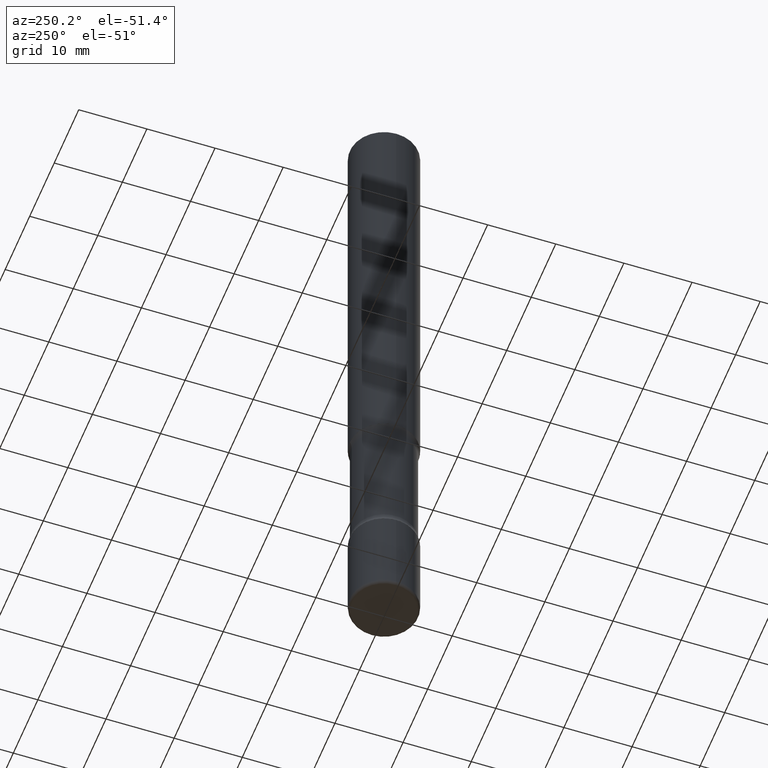
[diagram: clean part render]
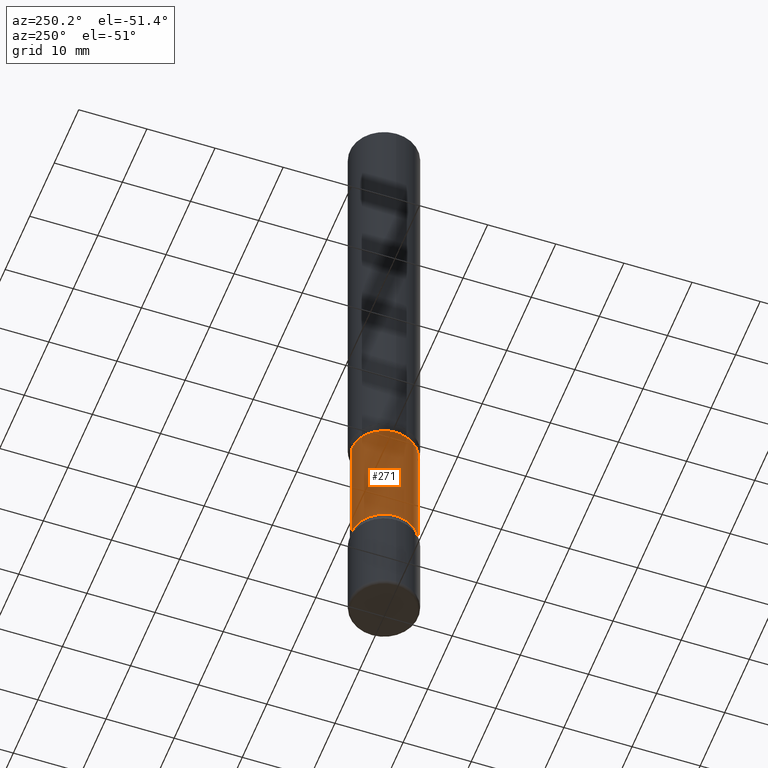
[diagram: same view with one face highlighted and labeled with its STEP entity id]
A machine part, auxiliary view. The second image highlights one B-rep face of the part: STEP entity #271.
In plain terms, the highlighted cylindrical surface (edge-blend (fillet) strip) has radius 4.7409 mm, axis along (0, -0, -1).
Its self-contained STEP definition (entity closure, byte-faithful):
#23 = VECTOR ( 'NONE', #281, 39.37007874015748143 ) ;
#24 = VERTEX_POINT ( 'NONE', #256 ) ;
#26 = FACE_OUTER_BOUND ( 'NONE', #367, .T. ) ;
#32 = EDGE_CURVE ( 'NONE', #24, #126, #135, .T. ) ;
#39 = DIRECTION ( 'NONE',  ( 2.591588243807108620E-29, -3.282229987566573640E-15, -1.000000000000000000 ) ) ;
#65 = VERTEX_POINT ( 'NONE', #94 ) ;
#68 = DIRECTION ( 'NONE',  ( 2.591588243807108620E-29, -3.282229987566573640E-15, -1.000000000000000000 ) ) ;
#94 = CARTESIAN_POINT ( 'NONE',  ( 1.303369983790204808E-15, 0.1866499999999908233, -2.608456647682592777 ) ) ;
#95 = VECTOR ( 'NONE', #453, 39.37007874015748143 ) ;
#102 = EDGE_CURVE ( 'NONE', #65, #120, #393, .T. ) ;
#106 = ORIENTED_EDGE ( 'NONE', *, *, #317, .F. ) ;
#113 = DIRECTION ( 'NONE',  ( 6.982962677686266711E-15, 1.000000000000000000, -2.927241354046893093E-15 ) ) ;
#117 = DIRECTION ( 'NONE',  ( 6.982962677686266711E-15, 1.000000000000000000, -2.927241354046892699E-15 ) ) ;
#120 = VERTEX_POINT ( 'NONE', #348 ) ;
#126 = VERTEX_POINT ( 'NONE', #358 ) ;
#128 = CYLINDRICAL_SURFACE ( 'NONE', #255, 0.1866500000000000381 ) ;
#135 = LINE ( 'NONE', #424, #95 ) ;
#151 = ORIENTED_EDGE ( 'NONE', *, *, #102, .T. ) ;
#203 = CARTESIAN_POINT ( 'NONE',  ( 9.708351723968114409E-29, -1.363062268620181866E-14, -3.937000000000000277 ) ) ;
#206 = ORIENTED_EDGE ( 'NONE', *, *, #302, .T. ) ;
#216 = DIRECTION ( 'NONE',  ( 6.982962677686266711E-15, 1.000000000000000000, -2.927241354046892304E-15 ) ) ;
#251 = CARTESIAN_POINT ( 'NONE',  ( 8.151697017269320442E-29, -1.165912942494680306E-14, -3.336343352317407973 ) ) ;
#255 = AXIS2_PLACEMENT_3D ( 'NONE', #203, #68, #117 ) ;
#256 = CARTESIAN_POINT ( 'NONE',  ( -1.315500491072630234E-15, -0.1866500000000093362, -2.608456647682591889 ) ) ;
#264 = AXIS2_PLACEMENT_3D ( 'NONE', #251, #421, #113 ) ;
#271 = ADVANCED_FACE ( 'NONE', ( #26 ), #128, .T. ) ;
#281 = DIRECTION ( 'NONE',  ( 2.591588243807108620E-29, -3.282229987566573640E-15, -1.000000000000000000 ) ) ;
#302 = EDGE_CURVE ( 'NONE', #24, #65, #352, .T. ) ;
#317 = EDGE_CURVE ( 'NONE', #126, #120, #362, .T. ) ;
#348 = CARTESIAN_POINT ( 'NONE',  ( 1.303369983790223149E-15, 0.1866499999999883530, -3.336343352317408861 ) ) ;
#352 = CIRCLE ( 'NONE', #539, 0.1866500000000000659 ) ;
#358 = CARTESIAN_POINT ( 'NONE',  ( -1.315500491072608935E-15, -0.1866500000000116399, -3.336343352317407529 ) ) ;
#362 = CIRCLE ( 'NONE', #264, 0.1866500000000000103 ) ;
#367 = EDGE_LOOP ( 'NONE', ( #420, #206, #151, #106 ) ) ;
#393 = LINE ( 'NONE', #468, #23 ) ;
#420 = ORIENTED_EDGE ( 'NONE', *, *, #32, .F. ) ;
#421 = DIRECTION ( 'NONE',  ( 2.591588243807108620E-29, -3.282229987566573640E-15, -1.000000000000000000 ) ) ;
#422 = CARTESIAN_POINT ( 'NONE',  ( 6.265314390714234203E-29, -9.270037855443396476E-15, -2.608456647682592333 ) ) ;
#424 = CARTESIAN_POINT ( 'NONE',  ( -1.280511951283959495E-15, -0.1866500000000136661, -3.936999999999999389 ) ) ;
#453 = DIRECTION ( 'NONE',  ( 2.591588243807108620E-29, -3.282229987566573640E-15, -1.000000000000000000 ) ) ;
#468 = CARTESIAN_POINT ( 'NONE',  ( 1.303369983790238926E-15, 0.1866499999999864101, -3.937000000000000721 ) ) ;
#539 = AXIS2_PLACEMENT_3D ( 'NONE', #422, #39, #216 ) ;